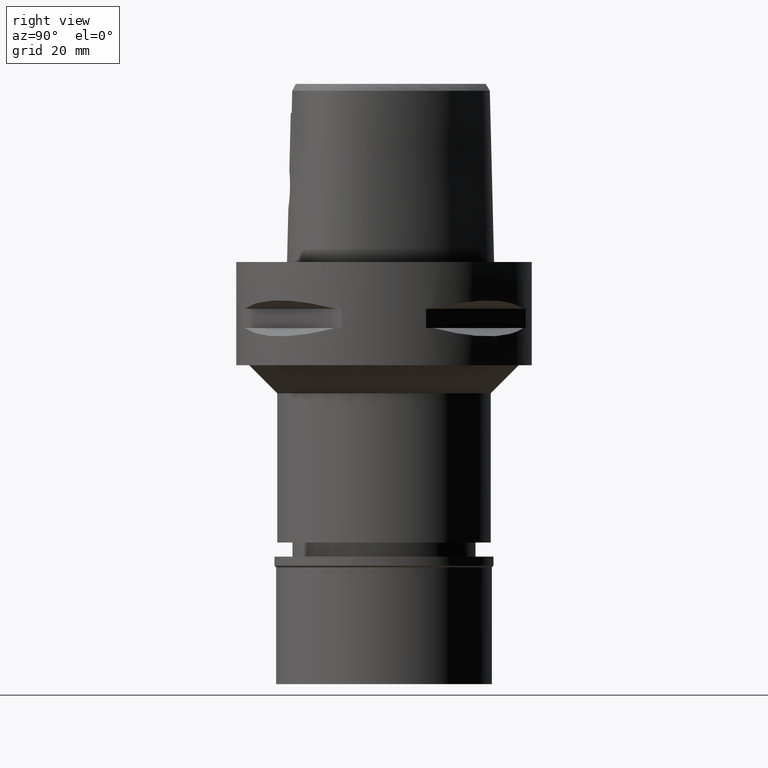
[diagram: clean part render]
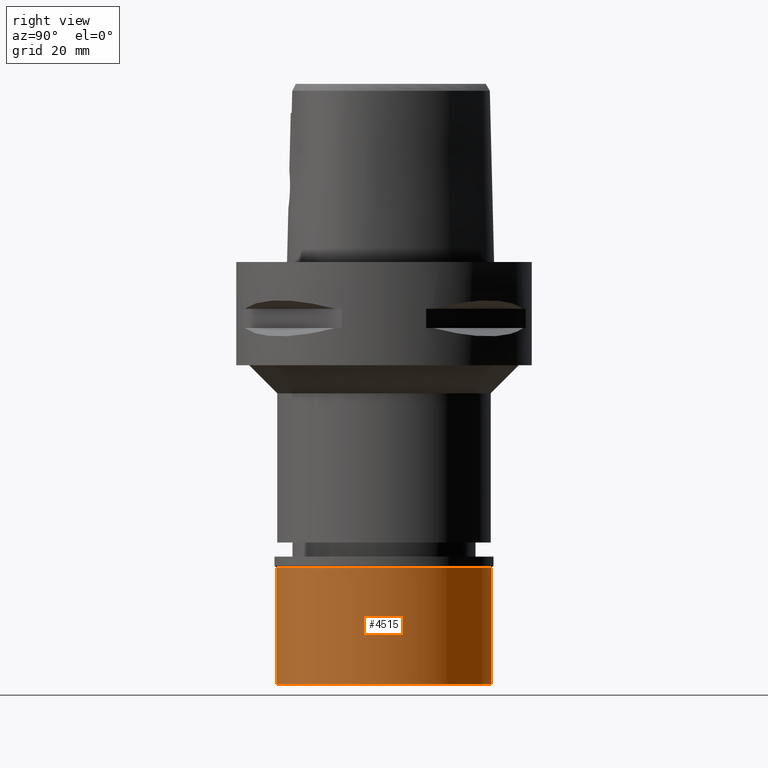
[diagram: same view with one face highlighted and labeled with its STEP entity id]
A machine part, right view. The second image highlights one B-rep face of the part: STEP entity #4515.
In plain terms, the highlighted cylindrical surface (partial cylindrical patch) has radius 23 mm, axis along (0, 0, -1).
Its self-contained STEP definition (entity closure, byte-faithful):
#62 = LINE ( 'NONE', #718, #3110 ) ;
#358 = VERTEX_POINT ( 'NONE', #4376 ) ;
#482 = EDGE_CURVE ( 'NONE', #4729, #4689, #2495, .T. ) ;
#620 = ORIENTED_EDGE ( 'NONE', *, *, #1903, .T. ) ;
#717 = CARTESIAN_POINT ( 'NONE',  ( 0.0000000000000000000, -23.00000000000000000, -2.299999999999999822 ) ) ;
#718 = CARTESIAN_POINT ( 'NONE',  ( 0.0000000000000000000, 23.00000000000000000, -2.299999999999999822 ) ) ;
#792 = DIRECTION ( 'NONE',  ( 0.0000000000000000000, 0.0000000000000000000, -1.000000000000000000 ) ) ;
#888 = CARTESIAN_POINT ( 'NONE',  ( 0.0000000000000000000, 0.0000000000000000000, -2.299999999999999822 ) ) ;
#998 = LINE ( 'NONE', #2567, #1656 ) ;
#1354 = CYLINDRICAL_SURFACE ( 'NONE', #3656, 23.00000000000000000 ) ;
#1358 = ORIENTED_EDGE ( 'NONE', *, *, #1993, .F. ) ;
#1656 = VECTOR ( 'NONE', #4056, 1000.000000000000000 ) ;
#1668 = VERTEX_POINT ( 'NONE', #2206 ) ;
#1679 = CARTESIAN_POINT ( 'NONE',  ( 0.0000000000000000000, 23.00000000000000000, -2.299999999999999822 ) ) ;
#1704 = CARTESIAN_POINT ( 'NONE',  ( 0.0000000000000000000, 0.0000000000000000000, 0.0000000000000000000 ) ) ;
#1731 = CARTESIAN_POINT ( 'NONE',  ( 0.0000000000000000000, 0.0000000000000000000, -27.19999999999999929 ) ) ;
#1903 = EDGE_CURVE ( 'NONE', #4689, #1668, #998, .T. ) ;
#1993 = EDGE_CURVE ( 'NONE', #4729, #358, #62, .T. ) ;
#2206 = CARTESIAN_POINT ( 'NONE',  ( 0.0000000000000000000, -23.00000000000000000, -27.19999999999999929 ) ) ;
#2380 = ORIENTED_EDGE ( 'NONE', *, *, #4632, .T. ) ;
#2495 = CIRCLE ( 'NONE', #3043, 23.00000000000000000 ) ;
#2567 = CARTESIAN_POINT ( 'NONE',  ( 0.0000000000000000000, -23.00000000000000000, -2.299999999999999822 ) ) ;
#2734 = AXIS2_PLACEMENT_3D ( 'NONE', #1731, #3269, #4776 ) ;
#2818 = DIRECTION ( 'NONE',  ( 0.0000000000000000000, 0.0000000000000000000, -1.000000000000000000 ) ) ;
#2958 = DIRECTION ( 'NONE',  ( 0.0000000000000000000, 0.0000000000000000000, -1.000000000000000000 ) ) ;
#3043 = AXIS2_PLACEMENT_3D ( 'NONE', #888, #2818, #3926 ) ;
#3110 = VECTOR ( 'NONE', #792, 1000.000000000000000 ) ;
#3269 = DIRECTION ( 'NONE',  ( 0.0000000000000000000, 0.0000000000000000000, 1.000000000000000000 ) ) ;
#3313 = DIRECTION ( 'NONE',  ( 0.0000000000000000000, -1.000000000000000000, 0.0000000000000000000 ) ) ;
#3656 = AXIS2_PLACEMENT_3D ( 'NONE', #1704, #2958, #3313 ) ;
#3657 = FACE_OUTER_BOUND ( 'NONE', #4640, .T. ) ;
#3926 = DIRECTION ( 'NONE',  ( 0.0000000000000000000, 1.000000000000000000, 0.0000000000000000000 ) ) ;
#4053 = CIRCLE ( 'NONE', #2734, 23.00000000000000000 ) ;
#4056 = DIRECTION ( 'NONE',  ( 0.0000000000000000000, 0.0000000000000000000, -1.000000000000000000 ) ) ;
#4376 = CARTESIAN_POINT ( 'NONE',  ( 0.0000000000000000000, 23.00000000000000000, -27.19999999999999929 ) ) ;
#4515 = ADVANCED_FACE ( 'NONE', ( #3657 ), #1354, .T. ) ;
#4632 = EDGE_CURVE ( 'NONE', #1668, #358, #4053, .T. ) ;
#4640 = EDGE_LOOP ( 'NONE', ( #4861, #620, #2380, #1358 ) ) ;
#4689 = VERTEX_POINT ( 'NONE', #717 ) ;
#4729 = VERTEX_POINT ( 'NONE', #1679 ) ;
#4776 = DIRECTION ( 'NONE',  ( 0.0000000000000000000, -1.000000000000000000, 0.0000000000000000000 ) ) ;
#4861 = ORIENTED_EDGE ( 'NONE', *, *, #482, .T. ) ;